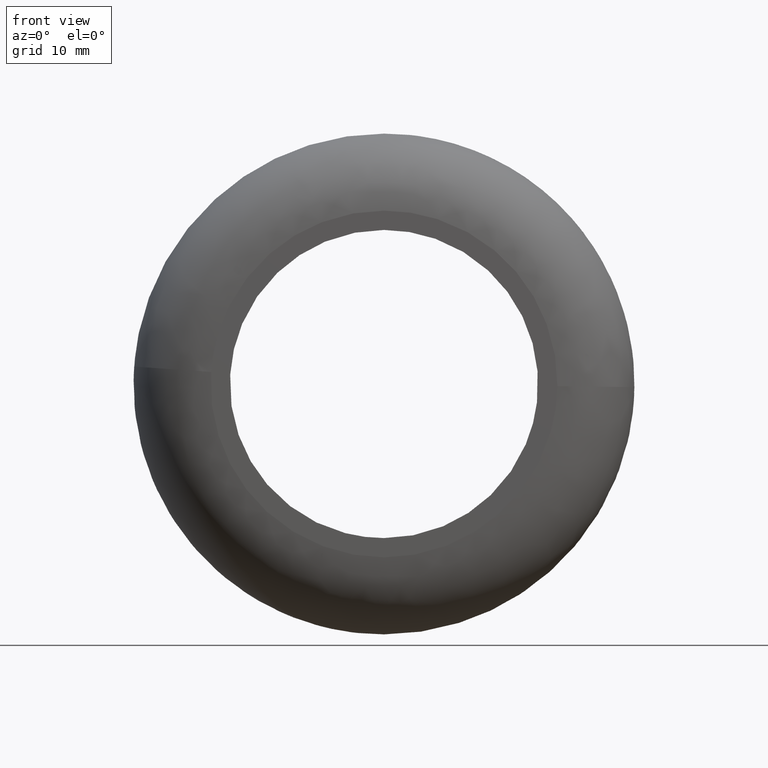
[diagram: clean part render]
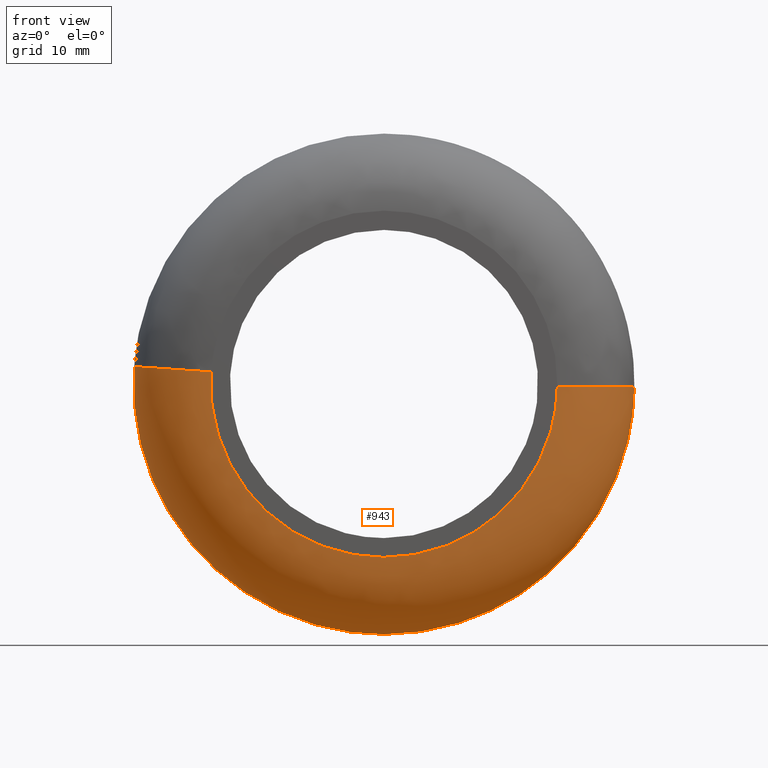
[diagram: same view with one face highlighted and labeled with its STEP entity id]
A machine part, front view. The second image highlights one B-rep face of the part: STEP entity #943.
In plain terms, the highlighted face is a freeform B-spline surface patch.
Its self-contained STEP definition (entity closure, byte-faithful):
#70=CARTESIAN_POINT('',(14.110946435018411,8.000000458614480,-21.837609546559520));
#71=VERTEX_POINT('',#70);
#72=CARTESIAN_POINT('',(25.997947368482730,8.000001292449309,-0.326699594867344));
#73=VERTEX_POINT('',#72);
#74=CARTESIAN_POINT('',(14.110946435018413,8.000000458614480,-21.837609546559523));
#75=CARTESIAN_POINT('',(25.822734219977335,8.000000941488212,-14.269729475274101));
#76=CARTESIAN_POINT('',(25.997947368482727,8.000001292449310,-0.326699594867343));
#84=(BOUNDED_CURVE()B_SPLINE_CURVE(2,(#74,#75,#76),.UNSPECIFIED.,.F.,.U.)B_SPLINE_CURVE_WITH_KNOTS((3,3),(0.092934715241405,0.247784413911472),.UNSPECIFIED.)CURVE()GEOMETRIC_REPRESENTATION_ITEM()RATIONAL_B_SPLINE_CURVE((0.863190116290633,0.816652432885149,0.994854567210753))REPRESENTATION_ITEM(''));
#85=EDGE_CURVE('',#71,#73,#84,.T.);
#128=CARTESIAN_POINT('',(-20.062241237377869,8.000000601774200,-16.538031216962938));
#129=VERTEX_POINT('',#128);
#135=CARTESIAN_POINT('',(-25.936707732659510,8.000001110807867,1.813061496635619));
#136=VERTEX_POINT('',#135);
#137=CARTESIAN_POINT('',(-25.936707732659517,8.000001110807867,1.813061496635619));
#138=CARTESIAN_POINT('',(-25.999999999999666,8.000001092727255,0.907635485005569));
#139=CARTESIAN_POINT('',(-25.999999999999680,8.000001073338627,-3.426702E-014));
#140=CARTESIAN_POINT('',(-25.999999999999741,8.000000873928279,-9.334952014712572));
#141=CARTESIAN_POINT('',(-20.062241237377872,8.000000601774200,-16.538031216962942));
#149=(BOUNDED_CURVE()B_SPLINE_CURVE(2,(#137,#138,#139,#140,#141),.UNSPECIFIED.,.F.,.U.)B_SPLINE_CURVE_WITH_KNOTS((3,2,3),(0.737833706721611,0.750000000000000,0.860504606936299),.UNSPECIFIED.)CURVE()GEOMETRIC_REPRESENTATION_ITEM()RATIONAL_B_SPLINE_CURVE((0.972879919083209,0.985746300802657,1.0,0.870535799922847,0.855522724180480))REPRESENTATION_ITEM(''));
#150=EDGE_CURVE('',#136,#129,#149,.T.);
#199=CARTESIAN_POINT('',(0.0,8.0,-26.0));
#200=VERTEX_POINT('',#199);
#201=CARTESIAN_POINT('',(0.0,8.0,-26.0));
#202=CARTESIAN_POINT('',(7.669375848586402,8.000000193031220,-25.999999999999986));
#203=CARTESIAN_POINT('',(14.110946435018414,8.000000458614480,-21.837609546559527));
#211=(BOUNDED_CURVE()B_SPLINE_CURVE(2,(#201,#202,#203),.UNSPECIFIED.,.F.,.U.)B_SPLINE_CURVE_WITH_KNOTS((3,3),(0.0,0.092934715241405),.UNSPECIFIED.)CURVE()GEOMETRIC_REPRESENTATION_ITEM()RATIONAL_B_SPLINE_CURVE((1.0,0.891120208453734,0.863190116290633))REPRESENTATION_ITEM(''));
#212=EDGE_CURVE('',#200,#71,#211,.T.);
#214=CARTESIAN_POINT('',(-20.062241237377872,8.000000601774200,-16.538031216962942));
#215=CARTESIAN_POINT('',(-12.262398076472840,8.000000244273899,-26.000000000000011));
#216=CARTESIAN_POINT('',(0.0,8.0,-26.0));
#224=(BOUNDED_CURVE()B_SPLINE_CURVE(2,(#214,#215,#216),.UNSPECIFIED.,.F.,.U.)B_SPLINE_CURVE_WITH_KNOTS((3,3),(0.860504606936299,1.0),.UNSPECIFIED.)CURVE()GEOMETRIC_REPRESENTATION_ITEM()RATIONAL_B_SPLINE_CURVE((0.855522724180480,0.836570981263700,1.0))REPRESENTATION_ITEM(''));
#225=EDGE_CURVE('',#129,#200,#224,.T.);
#848=CARTESIAN_POINT('',(-25.917389618975736,8.556297817926275,1.811712716281823));
#849=CARTESIAN_POINT('',(-25.969240008516667,8.556297817926273,1.069968876018898));
#850=CARTESIAN_POINT('',(-25.978583536354929,8.556297817926275,0.326473693821277));
#851=CARTESIAN_POINT('',(-26.305057230176210,8.556297817926271,-25.652109842533644));
#852=CARTESIAN_POINT('',(-0.326473693821278,8.556297817926275,-25.978583536354929));
#853=CARTESIAN_POINT('',(25.652109842533644,8.556297817926271,-26.305057230176210));
#854=CARTESIAN_POINT('',(25.978583536354929,8.556297817926275,-0.326473693821280));
#855=CARTESIAN_POINT('',(-26.555495864023708,-0.620297520827060,1.856318489297090));
#856=CARTESIAN_POINT('',(-26.608622850392511,-0.620297520827061,1.096312340072651));
#857=CARTESIAN_POINT('',(-26.618196423136983,-0.620297520827060,0.334511729515994));
#858=CARTESIAN_POINT('',(-26.952708152652978,-0.620297520827061,-26.283684693620980));
#859=CARTESIAN_POINT('',(-0.334511729515996,-0.620297520827060,-26.618196423136983));
#860=CARTESIAN_POINT('',(26.283684693620980,-0.620297520827061,-26.952708152652978));
#861=CARTESIAN_POINT('',(26.618196423136983,-0.620297520827060,-0.334511729515998));
#862=CARTESIAN_POINT('',(-17.401239262068255,0.019365094879737,1.216405159378760));
#863=CARTESIAN_POINT('',(-17.436052221532833,0.019365094879737,0.718389648351743));
#864=CARTESIAN_POINT('',(-17.442325575672889,0.019365094879737,0.219198265815929));
#865=CARTESIAN_POINT('',(-17.661523841488826,0.019365094879737,-17.223127309856956));
#866=CARTESIAN_POINT('',(-0.219198265815930,0.019365094879737,-17.442325575672889));
#867=CARTESIAN_POINT('',(17.223127309856956,0.019365094879737,-17.661523841488826));
#868=CARTESIAN_POINT('',(17.442325575672889,0.019365094879737,-0.219198265815931));
#876=(BOUNDED_SURFACE()B_SPLINE_SURFACE(2,2,((#848,#855,#862),(#849,#856,#863),(#850,#857,#864),(#851,#858,#865),(#852,#859,#866),(#853,#860,#867),(#854,#861,#868)),.UNSPECIFIED.,.F.,.F.,.U.)B_SPLINE_SURFACE_WITH_KNOTS((3,2,2,3),(3,3),(0.0,1.721843368684465,44.767968637780172,87.814093906875868),(0.0,14.578992763664880),.UNSPECIFIED.)GEOMETRIC_REPRESENTATION_ITEM()RATIONAL_B_SPLINE_SURFACE(((0.889999347940459,0.584039735443381,0.889999313642873),(0.899812919493589,0.590479645480290,0.899812884817820),(0.910479844210227,0.597479547113832,0.910479809123391),(0.643806471974723,0.422481839384458,0.643806447164583),(0.910479844210227,0.597479547113832,0.910479809123391),(0.643806471974723,0.422481839384458,0.643806447164583),(0.910479844210227,0.597479547113832,0.910479809123391)))REPRESENTATION_ITEM('')SURFACE());
#877=ORIENTED_EDGE('',*,*,#150,.T.);
#878=ORIENTED_EDGE('',*,*,#225,.T.);
#879=ORIENTED_EDGE('',*,*,#212,.T.);
#880=ORIENTED_EDGE('',*,*,#85,.T.);
#881=CARTESIAN_POINT('',(17.998578795741860,5.026045E-017,-0.226188717905229));
#882=VERTEX_POINT('',#881);
#883=CARTESIAN_POINT('',(25.997947368482734,8.000001292449309,-0.326699594867343));
#884=CARTESIAN_POINT('',(25.997948551201763,1.464610E-010,-0.326708332159748));
#885=CARTESIAN_POINT('',(17.998578795741853,5.026045E-017,-0.226188717905229));
#893=(BOUNDED_CURVE()B_SPLINE_CURVE(2,(#883,#884,#885),.UNSPECIFIED.,.F.,.U.)B_SPLINE_CURVE_WITH_KNOTS((3,3),(-1.725134808956898,-0.274865356736960),.UNSPECIFIED.)CURVE()GEOMETRIC_REPRESENTATION_ITEM()RATIONAL_B_SPLINE_CURVE((0.883342208765224,0.624617194574851,0.883342149646361))REPRESENTATION_ITEM(''));
#894=EDGE_CURVE('',#73,#882,#893,.T.);
#895=ORIENTED_EDGE('',*,*,#894,.T.);
#896=CARTESIAN_POINT('',(0.0,-2.664535E-015,-18.0));
#897=VERTEX_POINT('',#896);
#898=CARTESIAN_POINT('',(0.0,-2.664535E-015,-18.0));
#899=CARTESIAN_POINT('',(17.775214738323836,-2.664535E-015,-18.0));
#900=CARTESIAN_POINT('',(17.998578795741853,5.026045E-017,-0.226188717905229));
#908=(BOUNDED_CURVE()B_SPLINE_CURVE(2,(#898,#899,#900),.UNSPECIFIED.,.F.,.U.)B_SPLINE_CURVE_WITH_KNOTS((3,3),(0.0,0.247784295921651),.UNSPECIFIED.)CURVE()GEOMETRIC_REPRESENTATION_ITEM()RATIONAL_B_SPLINE_CURVE((1.0,0.709702639984331,0.994854295643834))REPRESENTATION_ITEM(''));
#909=EDGE_CURVE('',#897,#882,#908,.T.);
#910=ORIENTED_EDGE('',*,*,#909,.F.);
#911=CARTESIAN_POINT('',(-17.956182129380078,2.106516E-016,1.255198528417917));
#912=VERTEX_POINT('',#911);
#913=CARTESIAN_POINT('',(-17.956182129380082,2.106516E-016,1.255198528417917));
#914=CARTESIAN_POINT('',(-18.0,-2.664535E-015,0.628364085787079));
#915=CARTESIAN_POINT('',(-18.0,-2.664535E-015,-3.673819E-016));
#916=CARTESIAN_POINT('',(-18.000000000000007,-2.664535E-015,-18.000000000000007));
#917=CARTESIAN_POINT('',(0.0,-2.664535E-015,-18.0));
#925=(BOUNDED_CURVE()B_SPLINE_CURVE(2,(#913,#914,#915,#916,#917),.UNSPECIFIED.,.F.,.U.)B_SPLINE_CURVE_WITH_KNOTS((3,2,3),(0.737833686534328,0.750000000000000,1.0),.UNSPECIFIED.)CURVE()GEOMETRIC_REPRESENTATION_ITEM()RATIONAL_B_SPLINE_CURVE((0.972879876385360,0.985746277151783,1.0,0.707106781186547,1.0))REPRESENTATION_ITEM(''));
#926=EDGE_CURVE('',#912,#897,#925,.T.);
#927=ORIENTED_EDGE('',*,*,#926,.F.);
#928=CARTESIAN_POINT('',(-25.936707732659514,8.000001110807867,1.813061496635619));
#929=CARTESIAN_POINT('',(-25.936708734230201,5.117403E-010,1.813063096270947));
#930=CARTESIAN_POINT('',(-17.956182129380078,2.106516E-016,1.255198528417917));
#938=(BOUNDED_CURVE()B_SPLINE_CURVE(2,(#928,#929,#930),.UNSPECIFIED.,.F.,.U.)B_SPLINE_CURVE_WITH_KNOTS((3,3),(-1.725134785672842,-0.274865356783784),.UNSPECIFIED.)CURVE()GEOMETRIC_REPRESENTATION_ITEM()RATIONAL_B_SPLINE_CURVE((0.863472125034408,0.610566935041849,0.863472075349824))REPRESENTATION_ITEM(''));
#939=EDGE_CURVE('',#136,#912,#938,.T.);
#940=ORIENTED_EDGE('',*,*,#939,.F.);
#941=EDGE_LOOP('',(#877,#878,#879,#880,#895,#910,#927,#940));
#942=FACE_OUTER_BOUND('',#941,.T.);
#943=ADVANCED_FACE('',(#942),#876,.T.);